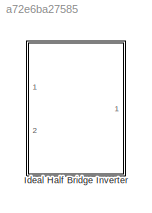
MODEL slx_a72e6ba27585
KIND model
CONFIG AbsTol = auto
CONFIG FixedStep = 1e-6
CONFIG MaxStep = auto
CONFIG MinStep = auto
CONFIG RelTol = 1e-3
CONFIG SampleTimeConstraint = Unconstrained
CONFIG Solver = ode2
CONFIG SolverMode = Auto
CONFIG SolverName = ode2
CONFIG StartTime = 0.0
CONFIG StopTime = 0.1
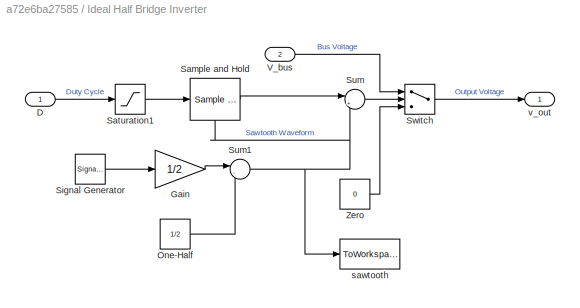
BLOCK [SubSystem] Ideal Half Bridge Inverter 
  Ports = [2, 1]
  RequestExecContextInheritance = off
  Variant = off
BLOCK [Inport] Ideal Half Bridge Inverter /D
  IconDisplay = Port number
BLOCK [Gain] Ideal Half Bridge Inverter /Gain
  Gain = 1/2
BLOCK [Constant] Ideal Half Bridge Inverter /One-Half
  Value = 1/2
BLOCK [Reference] Ideal Half Bridge Inverter /Sample and Hold  REF=dspsigops/Sample
and Hold
  Ports = [1, 1, 0, 1]
  SourceBlock = dspsigops/Sample\nand Hold
  SourceType = Sample and Hold
BLOCK [Saturate] Ideal Half Bridge Inverter /Saturation1
  InputPortMap = u0
  LowerLimit = 0
  Ports = [1, 1]
  UpperLimit = 1
BLOCK [SignalGenerator] Ideal Half Bridge Inverter /Signal Generator
  Frequency = 10e3
  Ports = [0, 1]
  WaveForm = sawtooth
BLOCK [Sum] Ideal Half Bridge Inverter /Sum
  IconShape = round
  InputSameDT = off
  Inputs = |+-
  OutDataTypeStr = Inherit: Inherit via internal rule
  Ports = [2, 1]
BLOCK [Sum] Ideal Half Bridge Inverter /Sum1
  IconShape = round
  InputSameDT = off
  Inputs = |-+
  OutDataTypeStr = Inherit: Inherit via internal rule
  Ports = [2, 1]
BLOCK [Switch] Ideal Half Bridge Inverter /Switch
  InputSameDT = off
BLOCK [Inport] Ideal Half Bridge Inverter /V_bus
  IconDisplay = Port number
  Port = 2
BLOCK [Constant] Ideal Half Bridge Inverter /Zero
  Value = 0
BLOCK [ToWorkspace] Ideal Half Bridge Inverter /sawtooth
  MaxDataPoints = inf
  Ports = [1]
  SampleTime = -1
  VariableName = sawtooth
BLOCK [Outport] Ideal Half Bridge Inverter /v_out
  IconDisplay = Port number
LINE Ideal Half Bridge Inverter /D:1 -> Ideal Half Bridge Inverter /Saturation1:1
LINE Ideal Half Bridge Inverter /Gain:1 -> Ideal Half Bridge Inverter /Sum1:1
LINE Ideal Half Bridge Inverter /One-Half:1 -> Ideal Half Bridge Inverter /Sum1:2
LINE Ideal Half Bridge Inverter /Sample and Hold:1 -> Ideal Half Bridge Inverter /Sum:1
LINE Ideal Half Bridge Inverter /Saturation1:1 -> Ideal Half Bridge Inverter /Sample and Hold:1
LINE Ideal Half Bridge Inverter /Signal Generator:1 -> Ideal Half Bridge Inverter /Gain:1
NET Ideal Half Bridge Inverter /Sum1:1 -> Ideal Half Bridge Inverter /Sample and Hold:trigger, Ideal Half Bridge Inverter /Sum:2, Ideal Half Bridge Inverter /sawtooth:1
LINE Ideal Half Bridge Inverter /Sum:1 -> Ideal Half Bridge Inverter /Switch:2
LINE Ideal Half Bridge Inverter /Switch:1 -> Ideal Half Bridge Inverter /v_out:1
LINE Ideal Half Bridge Inverter /V_bus:1 -> Ideal Half Bridge Inverter /Switch:1
LINE Ideal Half Bridge Inverter /Zero:1 -> Ideal Half Bridge Inverter /Switch:3
note: NET lines group one-source signal fan-out (src -> all destinations, sorted); 1:1 wires keep LINE
